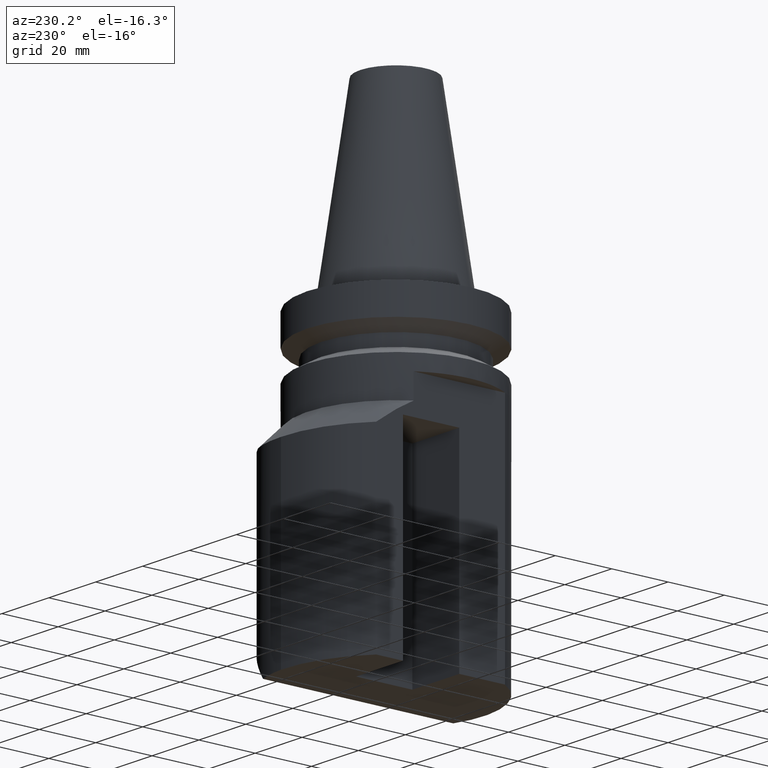
[diagram: clean part render]
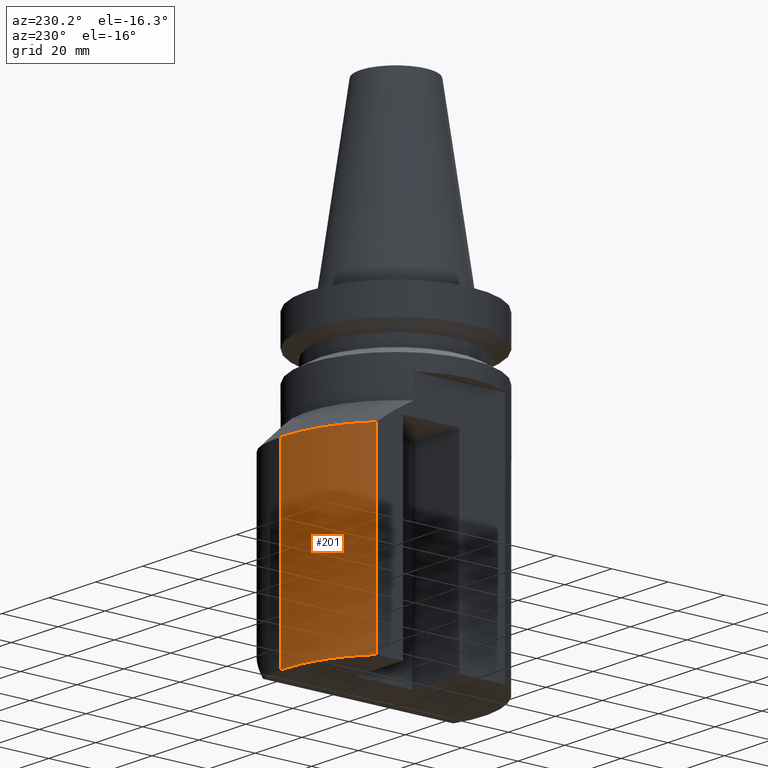
[diagram: same view with one face highlighted and labeled with its STEP entity id]
A machine part, auxiliary view. The second image highlights one B-rep face of the part: STEP entity #201.
In plain terms, the highlighted cylindrical surface (partial cylindrical patch) has radius 40 mm, axis along (0, -0, 1).
Its self-contained STEP definition (entity closure, byte-faithful):
#98=EDGE_CURVE('Unnamed[1]',#273,#274,#275,.T.);
#100=EDGE_CURVE('Unnamed[1]',#277,#278,#279,.T.);
#142=EDGE_CURVE('Unnamed[1]',#274,#278,#344,.T.);
#201=ADVANCED_FACE('Unnamed[1]',(#427),#428,.T.);
#203=EDGE_CURVE('Unnamed[1]',#277,#273,#430,.T.);
#273=VERTEX_POINT('',#501);
#274=VERTEX_POINT('',#502);
#275=CIRCLE('',#503,39.9999999999955);
#277=VERTEX_POINT('',#506);
#278=VERTEX_POINT('',#507);
#279=CIRCLE('',#508,40.0000000000002);
#344=LINE('',#620,#621);
#427=FACE_OUTER_BOUND('',#748,.T.);
#428=CYLINDRICAL_SURFACE('',#749,39.9999999999978);
#430=LINE('',#752,#753);
#501=CARTESIAN_POINT('',(-27.0000000001167,29.5127091266345,-43.799999999997));
#502=CARTESIAN_POINT('',(1.00783010340634,39.9873014653691,-43.799999999997));
#503=AXIS2_PLACEMENT_3D('',#849,#850,#851);
#506=CARTESIAN_POINT('',(-27.0000000001167,29.5127091266377,-110.000000000002));
#507=CARTESIAN_POINT('',(1.0078301027153,39.9873014653912,-109.999999999997));
#508=AXIS2_PLACEMENT_3D('',#852,#853,#854);
#620=CARTESIAN_POINT('',(1.00783010305223,39.9873014653804,-272.996571842879));
#621=VECTOR('',#930,1.0);
#748=EDGE_LOOP('',(#1027,#1028,#1029,#1030));
#749=AXIS2_PLACEMENT_3D('',#1031,#1032,#1033);
#752=CARTESIAN_POINT('',(-27.0000000001167,29.5127091266377,-76.899999999997));
#753=VECTOR('',#1034,1.0);
#849=CARTESIAN_POINT('',(-2.68197649013252E-015,1.52518741154558E-015,-43.799999999997));
#850=DIRECTION('',(-6.12323399573676E-017,1.97960454588128E-016,-1.0));
#851=DIRECTION('',(-1.22464679914735E-016,-1.0,-1.97960454588128E-016));
#852=CARTESIAN_POINT('',(-6.73555739531025E-015,1.46301695052797E-014,-109.999999999997));
#853=DIRECTION('',(-6.12323399573676E-017,1.97960454588128E-016,-1.0));
#854=DIRECTION('',(-1.22464679914735E-016,-1.0,-1.97960454588128E-016));
#930=DIRECTION('',(-6.12323399573677E-017,-1.22464679914735E-016,-1.0));
#1027=ORIENTED_EDGE('',*,*,#142,.T.);
#1028=ORIENTED_EDGE('',*,*,#100,.F.);
#1029=ORIENTED_EDGE('',*,*,#203,.T.);
#1030=ORIENTED_EDGE('',*,*,#98,.T.);
#1031=CARTESIAN_POINT('',(-4.70876694272139E-015,8.07767845841262E-015,-76.899999999997));
#1032=DIRECTION('',(6.12323399573676E-017,-1.97960454588128E-016,1.0));
#1033=DIRECTION('',(-1.22464679914735E-016,-1.0,-1.97960454588128E-016));
#1034=DIRECTION('',(6.12323399573676E-017,-1.97960454588128E-016,1.0));